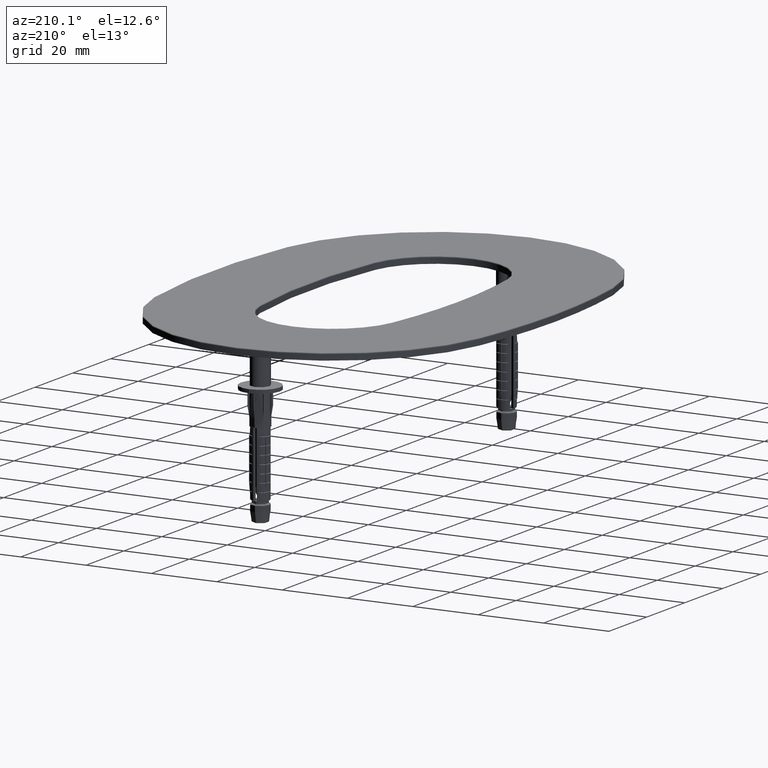
[diagram: clean part render]
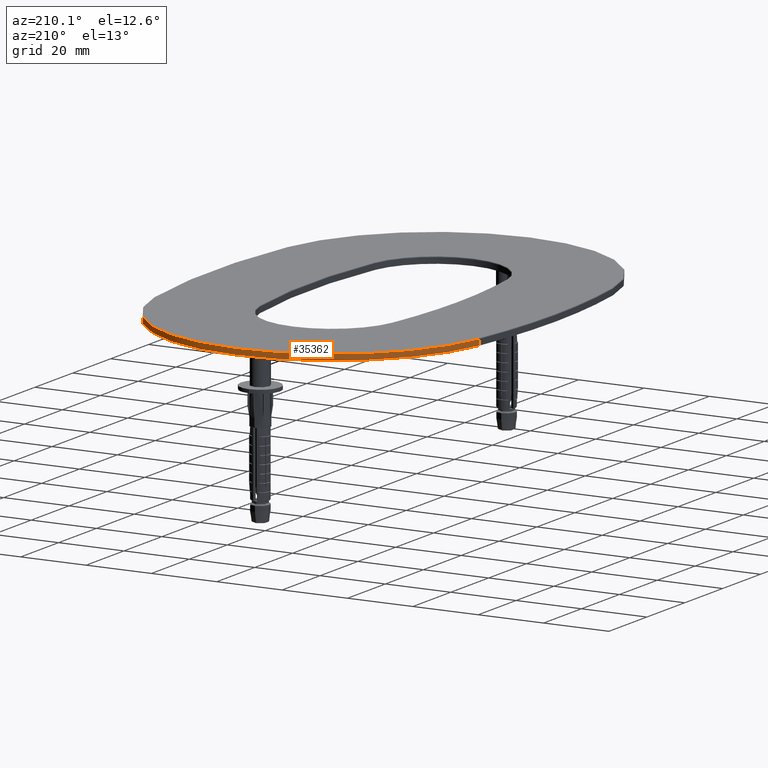
[diagram: same view with one face highlighted and labeled with its STEP entity id]
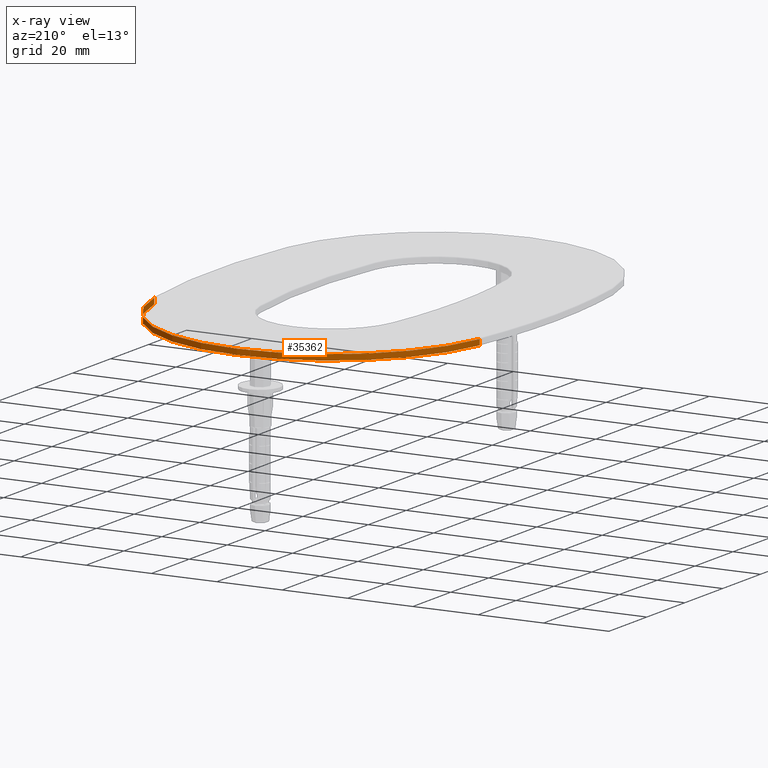
[diagram: x-ray of the same camera — body ghosted, the highlighted face saturated]
A machine part, auxiliary view. The second image highlights one B-rep face of the part: STEP entity #35362.
The next image is the same camera in x-ray: the body ghosted, the highlighted face saturated — about 0% of this face is hidden behind the body in this view.
In plain terms, the highlighted cylindrical surface (partial cylindrical patch) has radius 50.45 mm, axis along (-0, -0, -1).
Its self-contained STEP definition (entity closure, byte-faithful):
#31 = CYLINDRICAL_SURFACE ( 'NONE', #23162, 50.44999999999995310 ) ;
#523 = DIRECTION ( 'NONE',  ( -0.000000000000000000, -0.000000000000000000, -1.000000000000000000 ) ) ;
#1090 = VERTEX_POINT ( 'NONE', #21825 ) ;
#1641 = ORIENTED_EDGE ( 'NONE', *, *, #8689, .T. ) ;
#3163 = DIRECTION ( 'NONE',  ( -0.000000000000000000, -0.000000000000000000, -1.000000000000000000 ) ) ;
#4892 = CIRCLE ( 'NONE', #28912, 50.44999999999995310 ) ;
#5470 = EDGE_LOOP ( 'NONE', ( #38751, #31065, #1641, #30513 ) ) ;
#6404 = CARTESIAN_POINT ( 'NONE',  ( 49.80184873371896259, 112.6109157484599734, 0.000000000000000000 ) ) ;
#6809 = EDGE_CURVE ( 'NONE', #30802, #11679, #4892, .T. ) ;
#7142 = FACE_OUTER_BOUND ( 'NONE', #5470, .T. ) ;
#8689 = EDGE_CURVE ( 'NONE', #27877, #30802, #17144, .T. ) ;
#9226 = DIRECTION ( 'NONE',  ( -1.000000000000000000, 0.000000000000000000, 0.000000000000000000 ) ) ;
#9476 = CARTESIAN_POINT ( 'NONE',  ( 49.80184873371896259, 112.6109157484599734, 1.750000000000000000 ) ) ;
#11227 = DIRECTION ( 'NONE',  ( -0.000000000000000000, -0.000000000000000000, -1.000000000000000000 ) ) ;
#11448 = VECTOR ( 'NONE', #29193, 1000.000000000000000 ) ;
#11679 = VERTEX_POINT ( 'NONE', #36326 ) ;
#12736 = DIRECTION ( 'NONE',  ( -1.000000000000000000, 0.000000000000000000, 0.000000000000000000 ) ) ;
#13563 = AXIS2_PLACEMENT_3D ( 'NONE', #31747, #11227, #35162 ) ;
#14934 = CARTESIAN_POINT ( 'NONE',  ( 49.80184873371896259, 112.6109157484599734, 2.000000000000000000 ) ) ;
#17144 = LINE ( 'NONE', #14934, #11448 ) ;
#21825 = CARTESIAN_POINT ( 'NONE',  ( -49.80184873371895549, 112.6109157484599450, 1.750000000000000000 ) ) ;
#23162 = AXIS2_PLACEMENT_3D ( 'NONE', #27978, #523, #12736 ) ;
#24064 = CARTESIAN_POINT ( 'NONE',  ( -49.80184873371895549, 112.6109157484599450, 2.000000000000000000 ) ) ;
#27640 = VECTOR ( 'NONE', #3163, 1000.000000000000000 ) ;
#27768 = CARTESIAN_POINT ( 'NONE',  ( 0.000000000000000000, 104.5499999999999972, 0.000000000000000000 ) ) ;
#27877 = VERTEX_POINT ( 'NONE', #9476 ) ;
#27978 = CARTESIAN_POINT ( 'NONE',  ( 0.000000000000000000, 104.5499999999999972, 2.000000000000000000 ) ) ;
#28515 = EDGE_CURVE ( 'NONE', #1090, #11679, #36586, .T. ) ;
#28912 = AXIS2_PLACEMENT_3D ( 'NONE', #27768, #33193, #9226 ) ;
#29193 = DIRECTION ( 'NONE',  ( -0.000000000000000000, -0.000000000000000000, -1.000000000000000000 ) ) ;
#30513 = ORIENTED_EDGE ( 'NONE', *, *, #6809, .T. ) ;
#30802 = VERTEX_POINT ( 'NONE', #6404 ) ;
#31065 = ORIENTED_EDGE ( 'NONE', *, *, #35957, .T. ) ;
#31747 = CARTESIAN_POINT ( 'NONE',  ( 0.000000000000000000, 104.5499999999999972, 1.750000000000000000 ) ) ;
#33193 = DIRECTION ( 'NONE',  ( 0.000000000000000000, 0.000000000000000000, 1.000000000000000000 ) ) ;
#33519 = CIRCLE ( 'NONE', #13563, 50.44999999999995310 ) ;
#35162 = DIRECTION ( 'NONE',  ( -1.000000000000000000, 0.000000000000000000, 0.000000000000000000 ) ) ;
#35362 = ADVANCED_FACE ( 'NONE', ( #7142 ), #31, .T. ) ;
#35957 = EDGE_CURVE ( 'NONE', #1090, #27877, #33519, .T. ) ;
#36326 = CARTESIAN_POINT ( 'NONE',  ( -49.80184873371895549, 112.6109157484599450, 0.000000000000000000 ) ) ;
#36586 = LINE ( 'NONE', #24064, #27640 ) ;
#38751 = ORIENTED_EDGE ( 'NONE', *, *, #28515, .F. ) ;